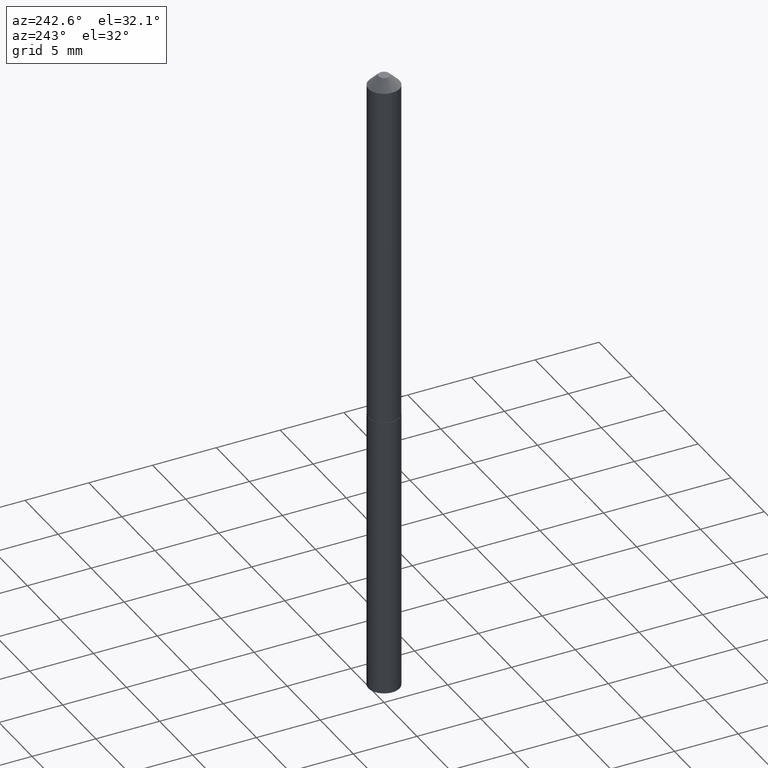
[diagram: clean part render]
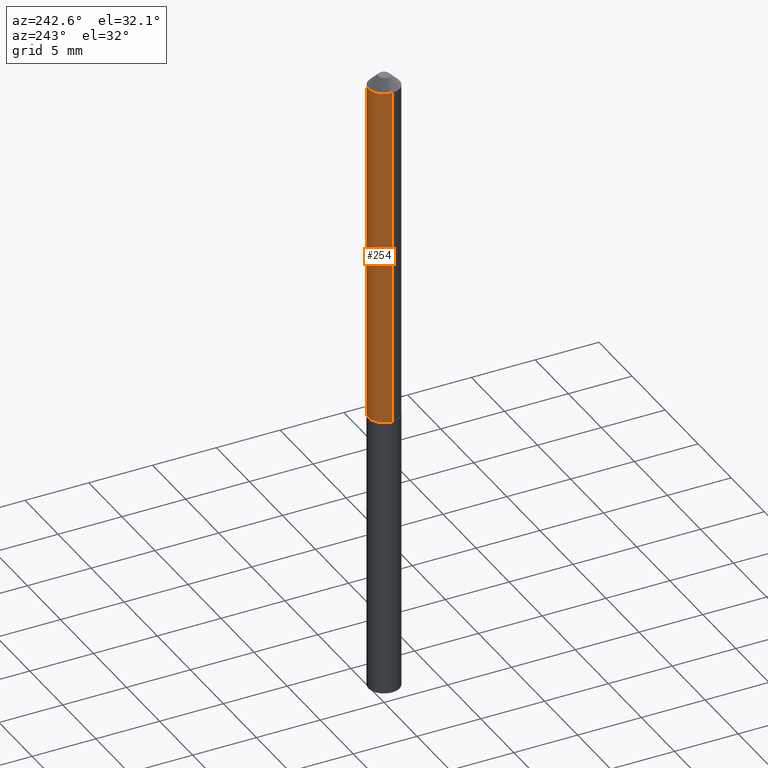
[diagram: same view with one face highlighted and labeled with its STEP entity id]
A machine part, auxiliary view. The second image highlights one B-rep face of the part: STEP entity #254.
In plain terms, the highlighted cylindrical surface (edge-blend (fillet) strip) has radius 1.2192 mm, axis along (-0, 0, 1).
Its self-contained STEP definition (entity closure, byte-faithful):
#7 = VERTEX_POINT ( 'NONE', #349 ) ;
#10 = DIRECTION ( 'NONE',  ( -2.445468806185136877E-29, 3.491481338843145188E-15, 1.000000000000000000 ) ) ;
#19 = FACE_OUTER_BOUND ( 'NONE', #121, .T. ) ;
#24 = CARTESIAN_POINT ( 'NONE',  ( 7.642090019328601786E-31, -1.091087918388490144E-16, -0.03125000000000020123 ) ) ;
#37 = VECTOR ( 'NONE', #10, 39.37007874015748143 ) ;
#38 = CIRCLE ( 'NONE', #211, 0.04800000000000013284 ) ;
#53 = EDGE_CURVE ( 'NONE', #357, #7, #161, .T. ) ;
#65 = ORIENTED_EDGE ( 'NONE', *, *, #364, .T. ) ;
#88 = CARTESIAN_POINT ( 'NONE',  ( 0.000000000000000000, 0.000000000000000000, 0.000000000000000000 ) ) ;
#89 = ORIENTED_EDGE ( 'NONE', *, *, #115, .F. ) ;
#92 = DIRECTION ( 'NONE',  ( -2.445468806185136877E-29, 3.491481338843145188E-15, 1.000000000000000000 ) ) ;
#104 = AXIS2_PLACEMENT_3D ( 'NONE', #88, #266, #113 ) ;
#113 = DIRECTION ( 'NONE',  ( 1.000000000000000000, -6.982962677686265922E-15, 4.876176775795935793E-29 ) ) ;
#115 = EDGE_CURVE ( 'NONE', #7, #333, #118, .T. ) ;
#118 = CIRCLE ( 'NONE', #338, 0.04800000000000000794 ) ;
#121 = EDGE_LOOP ( 'NONE', ( #125, #65, #89, #184 ) ) ;
#125 = ORIENTED_EDGE ( 'NONE', *, *, #205, .T. ) ;
#146 = DIRECTION ( 'NONE',  ( -2.445468806185136597E-29, 3.491481338843145583E-15, 1.000000000000000000 ) ) ;
#149 = VECTOR ( 'NONE', #92, 39.37007874015748143 ) ;
#161 = LINE ( 'NONE', #347, #37 ) ;
#174 = DIRECTION ( 'NONE',  ( 1.000000000000000000, -6.982962677686266711E-15, 0.000000000000000000 ) ) ;
#184 = ORIENTED_EDGE ( 'NONE', *, *, #53, .F. ) ;
#187 = VERTEX_POINT ( 'NONE', #325 ) ;
#205 = EDGE_CURVE ( 'NONE', #357, #187, #38, .T. ) ;
#211 = AXIS2_PLACEMENT_3D ( 'NONE', #299, #146, #269 ) ;
#216 = CARTESIAN_POINT ( 'NONE',  ( -0.04800000000000000794, -1.625952786105907668E-15, -0.03125000000000020123 ) ) ;
#218 = CARTESIAN_POINT ( 'NONE',  ( 0.04800000000000013284, -4.160100015231607087E-15, -1.095499999999999918 ) ) ;
#233 = DIRECTION ( 'NONE',  ( -2.445468806185136597E-29, 3.491481338843145583E-15, 1.000000000000000000 ) ) ;
#254 = ADVANCED_FACE ( 'NONE', ( #19 ), #379, .T. ) ;
#266 = DIRECTION ( 'NONE',  ( -2.445468806185136597E-29, 3.491481338843145583E-15, 1.000000000000000000 ) ) ;
#269 = DIRECTION ( 'NONE',  ( 1.000000000000000000, -6.982962677686262766E-15, 0.000000000000000000 ) ) ;
#299 = CARTESIAN_POINT ( 'NONE',  ( 2.679011077175817397E-29, -3.824917806702665780E-15, -1.095499999999999918 ) ) ;
#325 = CARTESIAN_POINT ( 'NONE',  ( -0.04800000000000013284, -3.483857293537816599E-15, -1.095499999999999918 ) ) ;
#331 = LINE ( 'NONE', #359, #149 ) ;
#333 = VERTEX_POINT ( 'NONE', #216 ) ;
#338 = AXIS2_PLACEMENT_3D ( 'NONE', #24, #233, #174 ) ;
#347 = CARTESIAN_POINT ( 'NONE',  ( 0.04800000000000007733, -3.351822085289413070E-16, 2.340564852382052838E-30 ) ) ;
#349 = CARTESIAN_POINT ( 'NONE',  ( 0.04800000000000000794, -4.442910003677899146E-16, -0.03125000000000020123 ) ) ;
#357 = VERTEX_POINT ( 'NONE', #218 ) ;
#359 = CARTESIAN_POINT ( 'NONE',  ( -0.04800000000000007733, 3.410605131648486387E-16, -2.361088843322358304E-30 ) ) ;
#364 = EDGE_CURVE ( 'NONE', #187, #333, #331, .T. ) ;
#379 = CYLINDRICAL_SURFACE ( 'NONE', #104, 0.04800000000000007733 ) ;